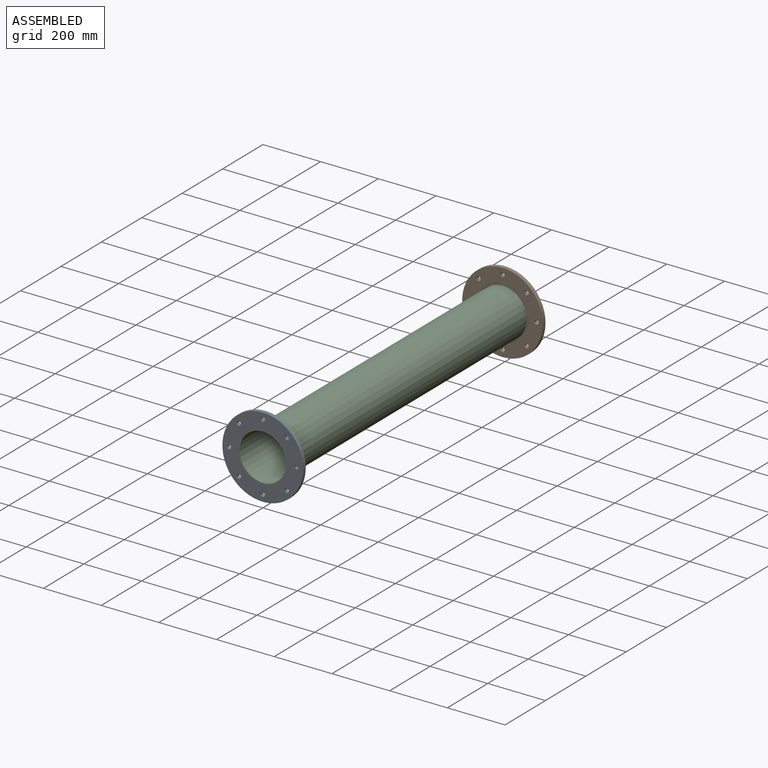
[diagram: assembled view]
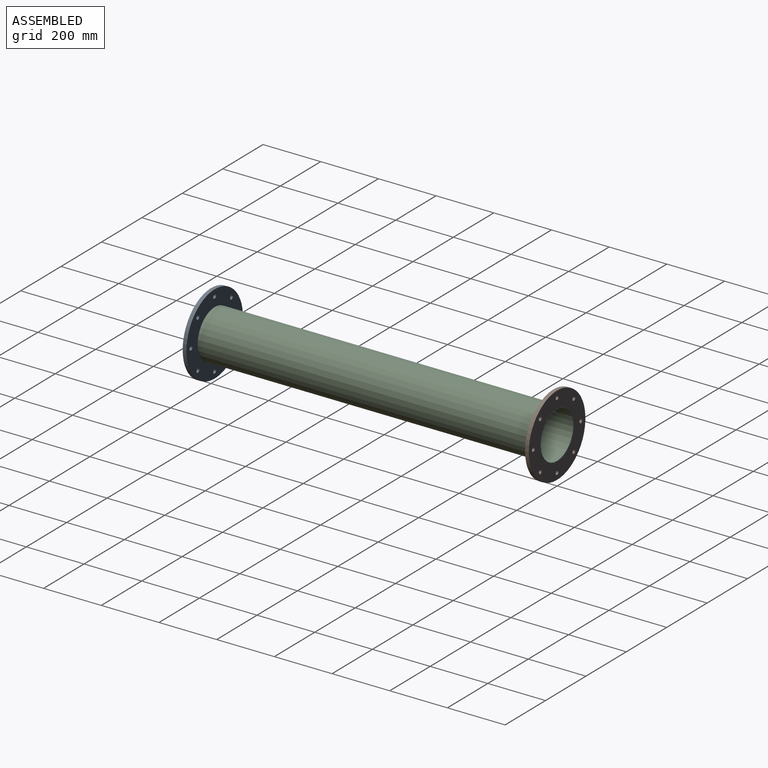
[diagram: assembled view, second angle]
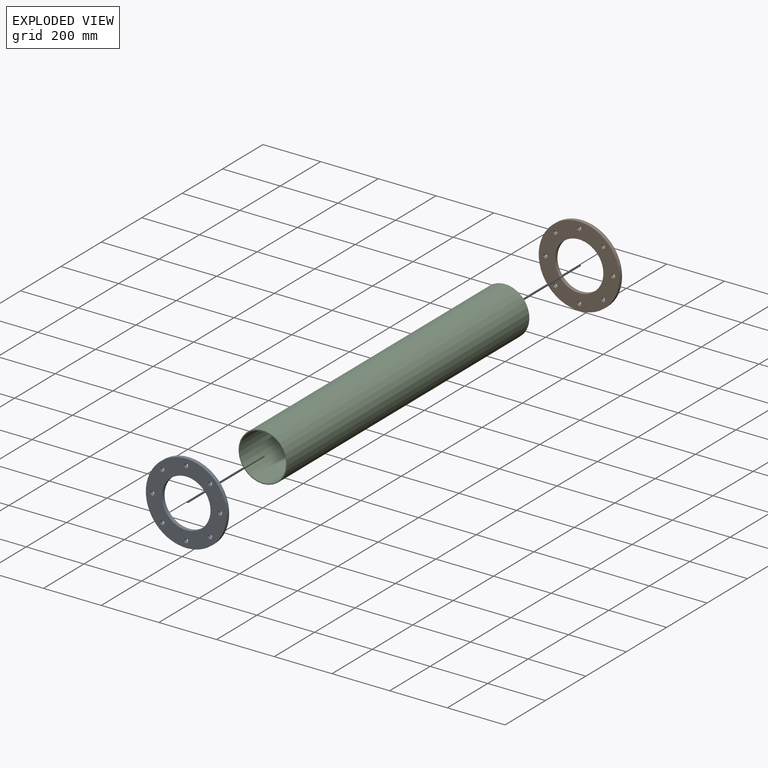
[diagram: exploded view]
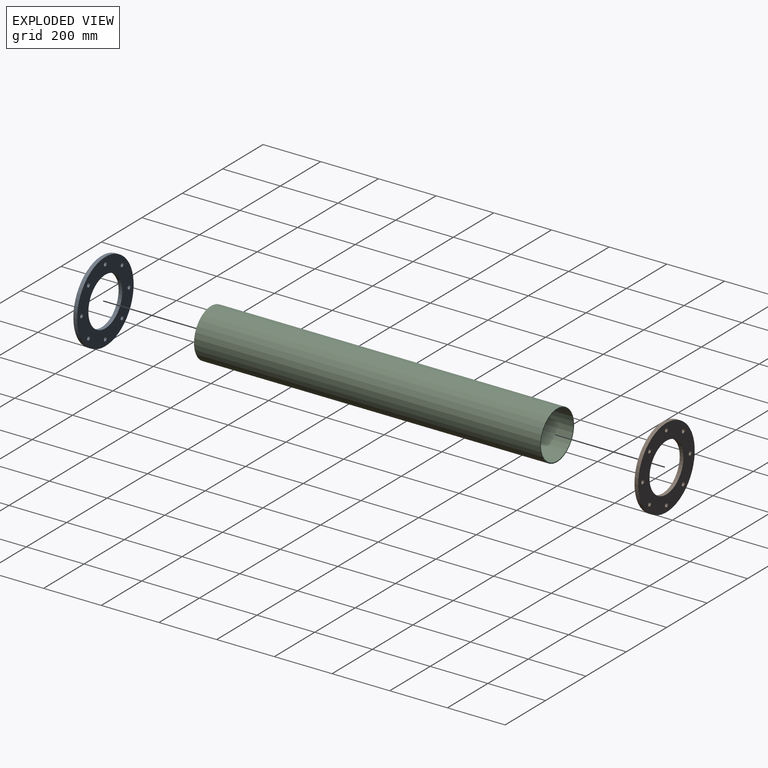
[diagram: exploded view, second angle]
ASSEMBLY  parts=3 mates=2
PART A: 12 faces, bbox 280x13x280 mm
  f0: cylinder r=7mm len=14mm, axis (0,1,0), area 571.8mm2, adj f10,f11
  f1: cylinder r=140mm len=280mm, axis (0,1,0), area 11435.4mm2, adj f10,f11
  f2: cylinder r=7mm len=14mm, axis (0,1,0), area 571.8mm2, adj f10,f11
  f3: cylinder r=7mm len=14mm, axis (0,1,0), area 571.8mm2, adj f10,f11
  f4: cylinder r=7mm len=14mm, axis (0,1,0), area 571.8mm2, adj f10,f11
  f5: cylinder r=7mm len=14mm, axis (0,1,0), area 571.8mm2, adj f10,f11
  f6: cylinder r=7mm len=14mm, axis (0,1,0), area 571.8mm2, adj f10,f11
  f7: cylinder r=7mm len=14mm, axis (0,1,0), area 571.8mm2, adj f10,f11
  f8: cylinder r=7mm len=14mm, axis (0,1,0), area 571.8mm2, adj f10,f11
  f9: cylinder r=84.15mm len=168.3mm, axis (0,1,0), area 6873.5mm2, adj f10,f11
  f10: plane 280x280mm, normal (0,-1,0), area 38097.4mm2, adj f0,f1,f2,f3,f4,f5,f6,f7
  f11: plane 280x280mm, normal (0,1,0), area 38097.4mm2, adj f0,f1,f2,f3,f4,f5,f6,f7
PART B: same geometry as A
PART C: 4 faces, bbox 168.3x1200x168.3 mm
  f0: cylinder r=80.75mm len=1200mm, axis (0,1,0), area 608840.7mm2, adj f2,f3
  f1: cylinder r=84.15mm len=1200mm, axis (0,1,0), area 634476.1mm2, adj f2,f3
  f2: plane 168.3x168.3mm, normal (0,-1,0), area 1761.4mm2, adj f0,f1
  f3: plane 168.3x168.3mm, normal (0,1,0), area 1761.4mm2, adj f0,f1
PLACE A t=(0,-1187,0)mm
PLACE B at identity
PLACE C at identity
MATE fastened A.f1 <-> C.f0  axis (0,-1,0) through (0,-1200,0)mm
MATE fastened B.f1 <-> C.f0  axis (0,1,0) through (0,0,0)mm
